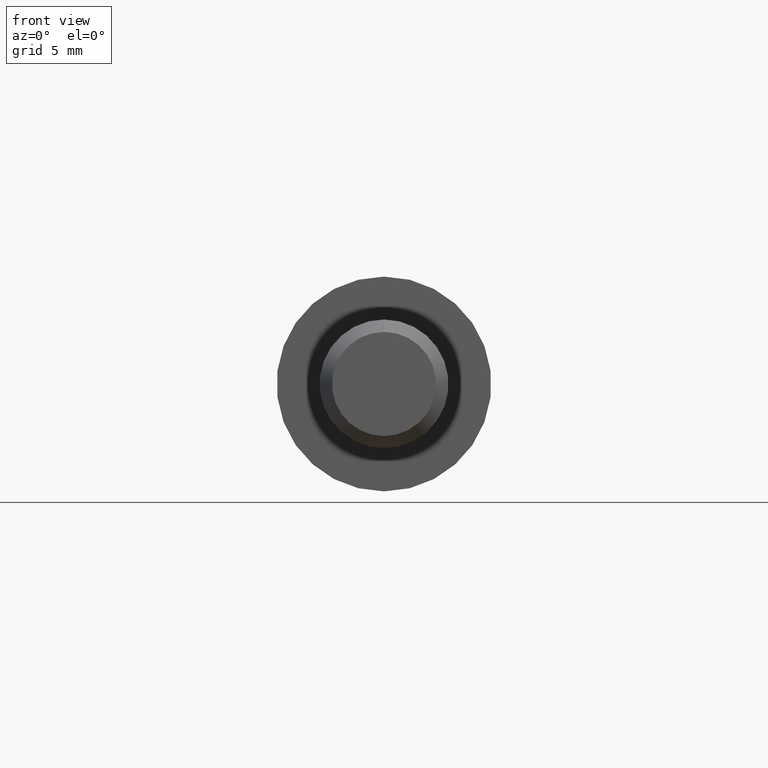
[diagram: clean part render]
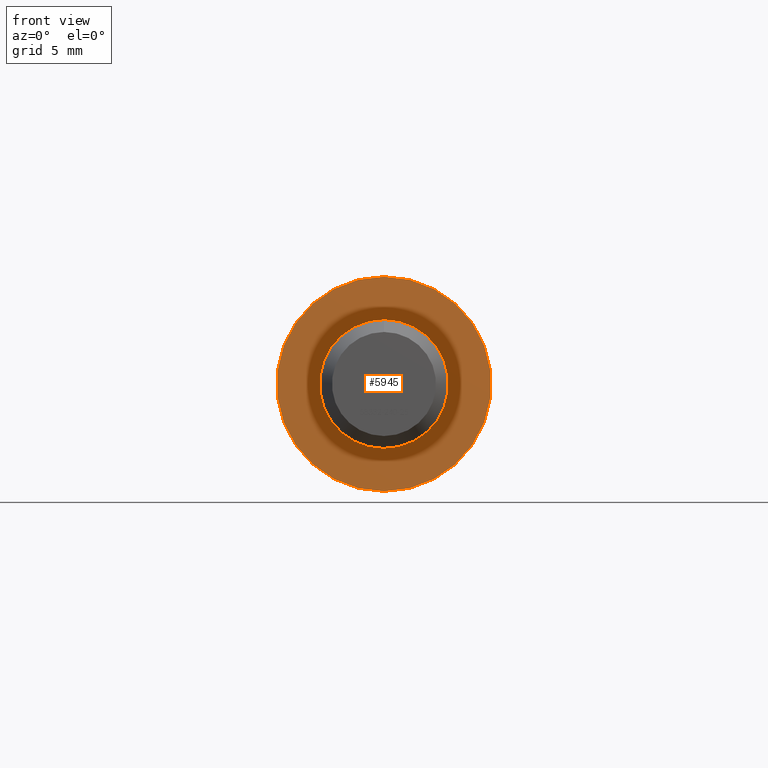
[diagram: same view with one face highlighted and labeled with its STEP entity id]
A machine part, front view. The second image highlights one B-rep face of the part: STEP entity #5945.
In plain terms, the highlighted planar face has unit normal (0, 1, 0).
Its self-contained STEP definition (entity closure, byte-faithful):
#2 = EDGE_LOOP ( 'NONE', ( #5762, #16626 ) ) ;
#417 = AXIS2_PLACEMENT_3D ( 'NONE', #2308, #18101, #9519 ) ;
#434 = CIRCLE ( 'NONE', #17756, 3.000000000000000444 ) ;
#603 = CIRCLE ( 'NONE', #13831, 5.000000000000000000 ) ;
#1614 = DIRECTION ( 'NONE',  ( -0.000000000000000000, -1.000000000000000000, -0.000000000000000000 ) ) ;
#2308 = CARTESIAN_POINT ( 'NONE',  ( 0.000000000000000000, 0.000000000000000000, 0.000000000000000000 ) ) ;
#2397 = VERTEX_POINT ( 'NONE', #9483 ) ;
#2423 = CARTESIAN_POINT ( 'NONE',  ( 3.673940397442060361E-16, 0.000000000000000000, -3.000000000000000444 ) ) ;
#3894 = DIRECTION ( 'NONE',  ( 0.000000000000000000, 1.000000000000000000, 0.000000000000000000 ) ) ;
#4233 = VERTEX_POINT ( 'NONE', #2423 ) ;
#4800 = DIRECTION ( 'NONE',  ( -0.000000000000000000, -1.000000000000000000, -0.000000000000000000 ) ) ;
#4923 = FACE_OUTER_BOUND ( 'NONE', #2, .T. ) ;
#5469 = AXIS2_PLACEMENT_3D ( 'NONE', #13867, #3894, #6890 ) ;
#5762 = ORIENTED_EDGE ( 'NONE', *, *, #14865, .F. ) ;
#5945 = ADVANCED_FACE ( 'NONE', ( #9244, #4923 ), #6621, .F. ) ;
#6621 = PLANE ( 'NONE',  #417 ) ;
#6882 = EDGE_CURVE ( 'NONE', #2397, #4233, #434, .T. ) ;
#6890 = DIRECTION ( 'NONE',  ( 0.000000000000000000, 0.000000000000000000, 1.000000000000000000 ) ) ;
#7296 = DIRECTION ( 'NONE',  ( 0.000000000000000000, 0.000000000000000000, 1.000000000000000000 ) ) ;
#7884 = DIRECTION ( 'NONE',  ( 0.000000000000000000, 1.000000000000000000, 0.000000000000000000 ) ) ;
#8540 = CARTESIAN_POINT ( 'NONE',  ( 6.123233995736766282E-16, 0.000000000000000000, 5.000000000000000000 ) ) ;
#9244 = FACE_BOUND ( 'NONE', #12450, .T. ) ;
#9483 = CARTESIAN_POINT ( 'NONE',  ( 0.000000000000000000, 0.000000000000000000, 3.000000000000000444 ) ) ;
#9519 = DIRECTION ( 'NONE',  ( 0.000000000000000000, -0.000000000000000000, 1.000000000000000000 ) ) ;
#9672 = EDGE_CURVE ( 'NONE', #16072, #14894, #10766, .T. ) ;
#10313 = CARTESIAN_POINT ( 'NONE',  ( 0.000000000000000000, 0.000000000000000000, 0.000000000000000000 ) ) ;
#10639 = EDGE_CURVE ( 'NONE', #4233, #2397, #14783, .T. ) ;
#10715 = CARTESIAN_POINT ( 'NONE',  ( 0.000000000000000000, 0.000000000000000000, -5.000000000000000000 ) ) ;
#10766 = CIRCLE ( 'NONE', #5469, 5.000000000000000000 ) ;
#11172 = AXIS2_PLACEMENT_3D ( 'NONE', #10313, #1614, #7296 ) ;
#12450 = EDGE_LOOP ( 'NONE', ( #12702, #13164 ) ) ;
#12702 = ORIENTED_EDGE ( 'NONE', *, *, #6882, .F. ) ;
#13164 = ORIENTED_EDGE ( 'NONE', *, *, #10639, .F. ) ;
#13831 = AXIS2_PLACEMENT_3D ( 'NONE', #16645, #7884, #16409 ) ;
#13867 = CARTESIAN_POINT ( 'NONE',  ( 0.000000000000000000, 0.000000000000000000, 0.000000000000000000 ) ) ;
#14783 = CIRCLE ( 'NONE', #11172, 3.000000000000000444 ) ;
#14865 = EDGE_CURVE ( 'NONE', #14894, #16072, #603, .T. ) ;
#14894 = VERTEX_POINT ( 'NONE', #10715 ) ;
#14997 = DIRECTION ( 'NONE',  ( 0.000000000000000000, 0.000000000000000000, 1.000000000000000000 ) ) ;
#16072 = VERTEX_POINT ( 'NONE', #8540 ) ;
#16409 = DIRECTION ( 'NONE',  ( 0.000000000000000000, 0.000000000000000000, 1.000000000000000000 ) ) ;
#16441 = CARTESIAN_POINT ( 'NONE',  ( 0.000000000000000000, 0.000000000000000000, 0.000000000000000000 ) ) ;
#16626 = ORIENTED_EDGE ( 'NONE', *, *, #9672, .F. ) ;
#16645 = CARTESIAN_POINT ( 'NONE',  ( 0.000000000000000000, 0.000000000000000000, 0.000000000000000000 ) ) ;
#17756 = AXIS2_PLACEMENT_3D ( 'NONE', #16441, #4800, #14997 ) ;
#18101 = DIRECTION ( 'NONE',  ( 0.000000000000000000, 1.000000000000000000, 0.000000000000000000 ) ) ;